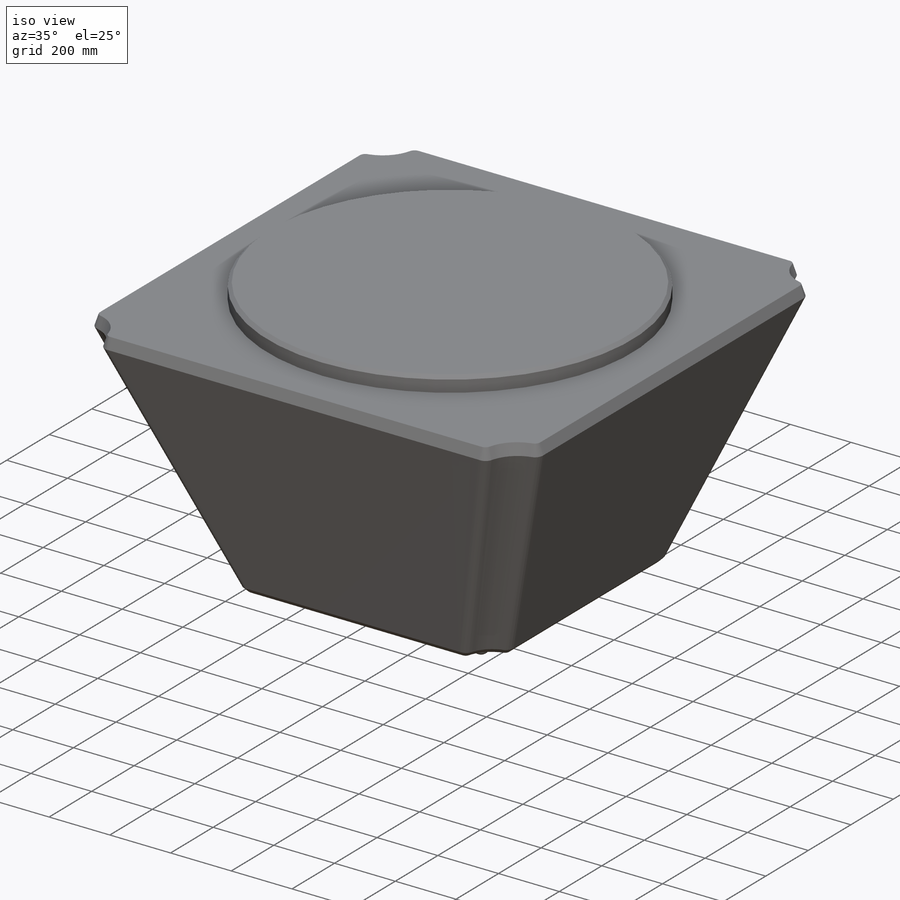
[diagram: iso view]
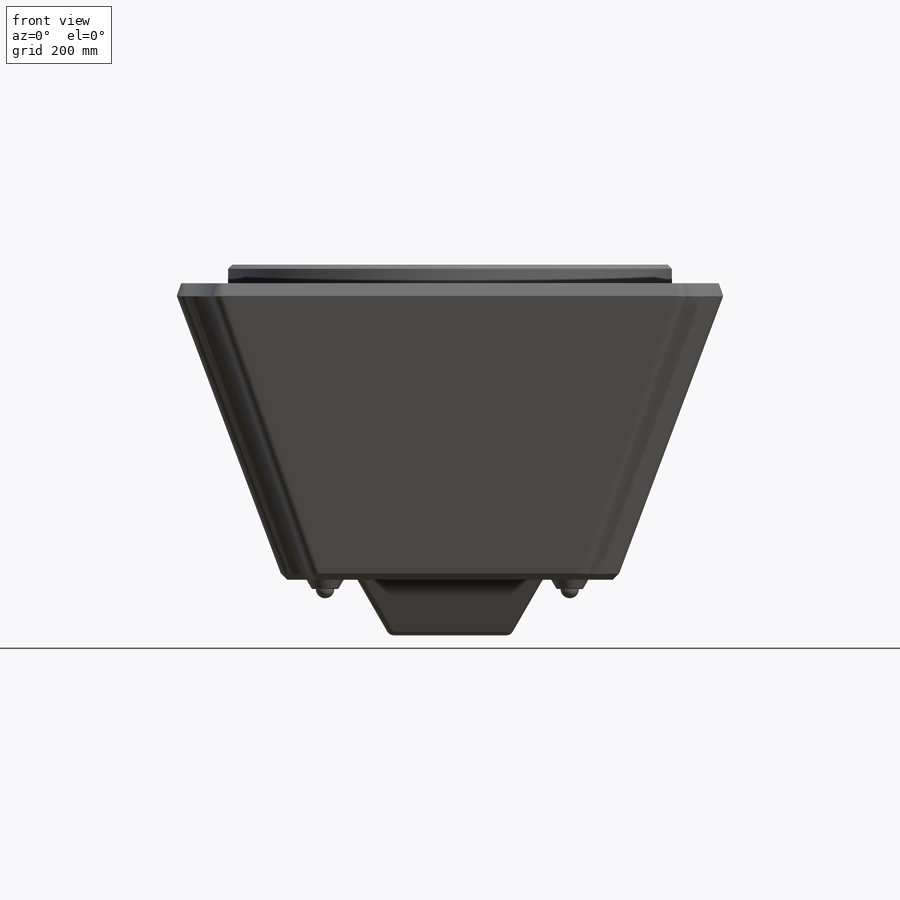
[diagram: front view]
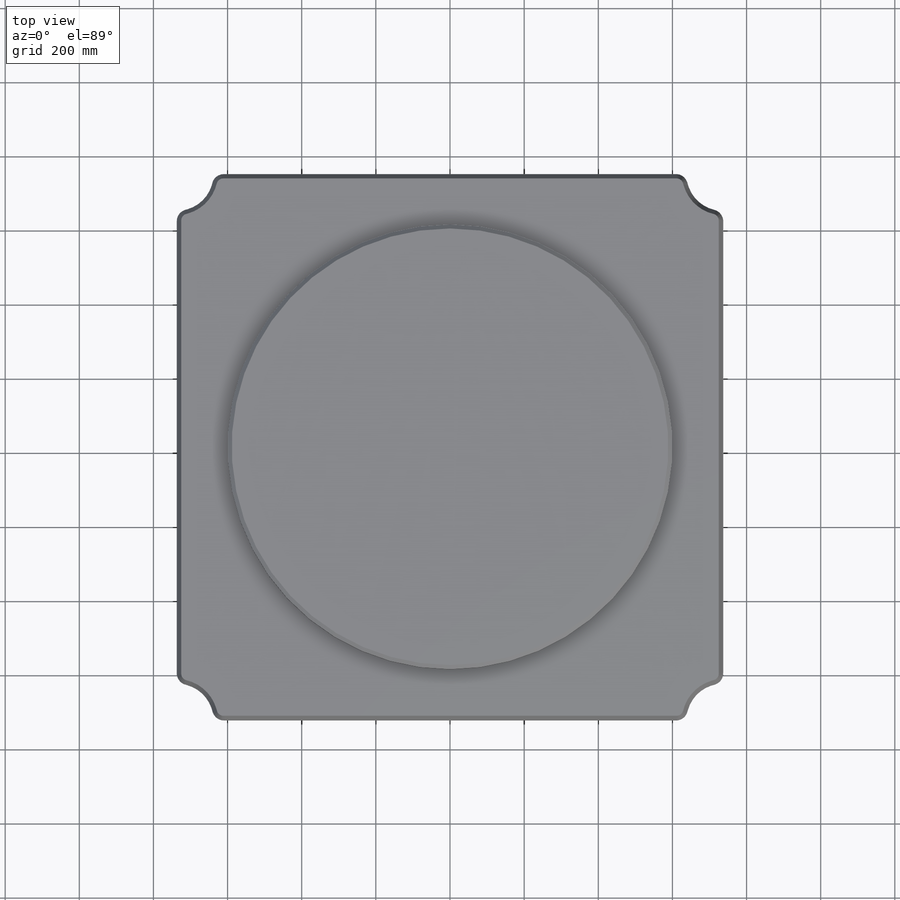
[diagram: top view]
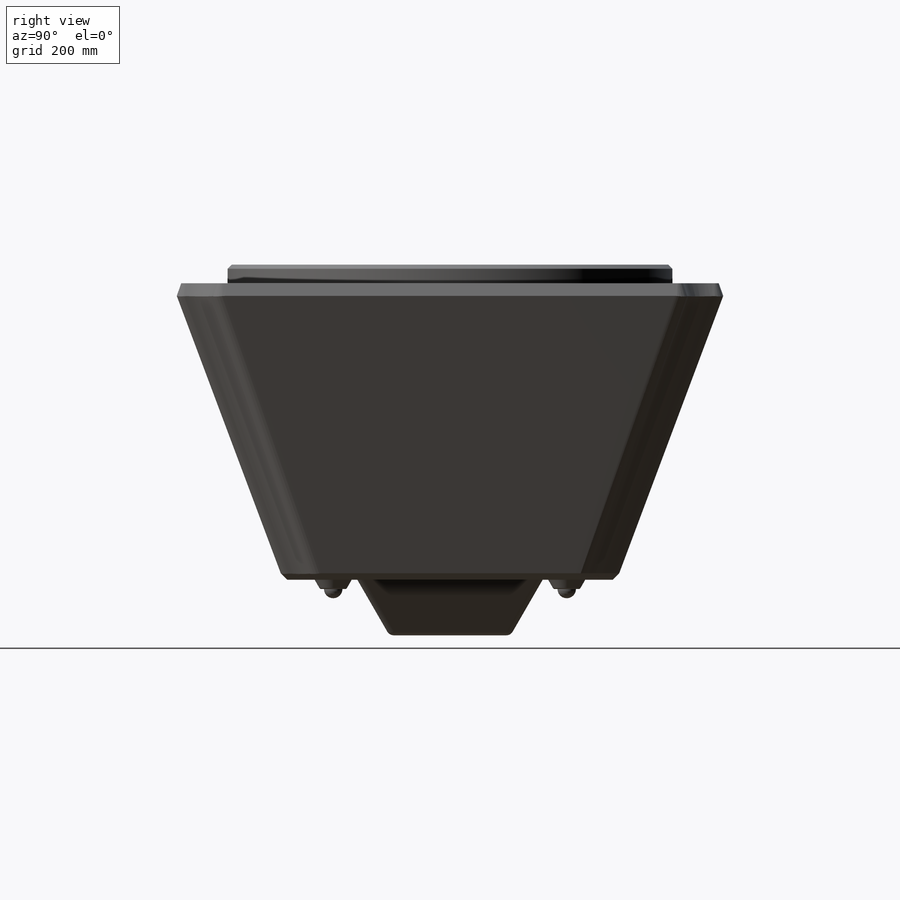
[diagram: right view]
SOLIDWORKS PART (.sldprt)
format: sldprt  version: not decoded by parser v0  size: 956,416 bytes
history: native  units: mm
features: sketch x11, chamfer x5, extrude x5, plane x4, cut_extrude x3, fillet x3, pattern_linear x2, material x1 (+10 scaffold rows collapsed)
feature tree (44):
  scaffold x10  (default folders/planes/origin — collapsed)
  material  "Matériau <non spécifié>"
  plane  "Plan de face"
  plane  "Plan de dessus"
  plane  "Plan de droite"
  sketch  "Esquisse2"  dims[D5=30.0mm D1=375.0mm D2=375.0mm D3=750.0mm D4=750.0mm]
  plane  "Plan2"  Offset=1000mm
  sketch  "Esquisse3"  dims[D5=30.0mm D1=750.0mm D2=750.0mm D3=1500.0mm D4=1500.0mm]
  sketch  "Esquisse4"  dims[D1=200.0mm]
  cut_extrude  "Enlèv. mat.-Extru.1"  Depth=950mm
  sketch  "Esquisse5"
  cut_extrude  "Enlèv. mat.-Extru.2"  Depth=950mm
  chamfer  "Chanfrein1"  Distance=40mm Angle=45deg
  chamfer  "Chanfrein2"  Distance=11mm Angle=45deg
  sketch  "Esquisse6"  dims[D1=~611.760701mm]
  extrude  "Boss.-Extru.1"  Depth=50mm
  chamfer  "Chanfrein3"  Distance=11mm Angle=45deg
  sketch  "Esquisse7"  dims[D1=1050.0mm]
  sketch  "Esquisse9"  dims[D1=500.0mm D2=500.0mm D3=250.0mm D4=250.0mm]
  extrude  "Boss.-Extru.2"  Depth=150mm
  fillet  "Congé1"  Radius=20mm
  sketch  "Esquisse10"  dims[D1=30.0mm D2=30.0mm D3=30.0mm D4=30.0mm]
  cut_extrude  "Enlèv. mat.-Extru.3"  Depth=10mm
  sketch  "Esquisse11"  dims[D1=30.0mm]
  extrude  "Boss.-Extru.3"  Depth=25mm
  chamfer  "Chanfrein5"  Distance=3mm Angle=20deg
  sketch  "Esquisse12"  dims[D1=~26.073298mm]
  extrude  "Boss.-Extru.4"  Depth=25mm
  fillet  "Congé2"  Radius=25mm
  pattern_linear  "Répétition linéaire9"  Count1=2 Count2=1 Spacing1=660mm Spacing2=1mm
  pattern_linear  "Répétition linéaire10"  Count1=2 Count2=1 Spacing1=630mm Spacing2=1mm
  chamfer  "Chanfrein6"  Distance=3mm Angle=20deg
  sketch  "Esquisse14"  dims[D1=22.958mm]
  extrude  "Boss.-Extru.5"  Depth=25mm
  fillet  "Congé3"  Radius=25mm
decode coverage: 28 of 29 modeling features carry decoded parameters
note: ~ marks probable driven/reference dimensions
note: suppression state not decoded; provenance and decode notes live in map.json
